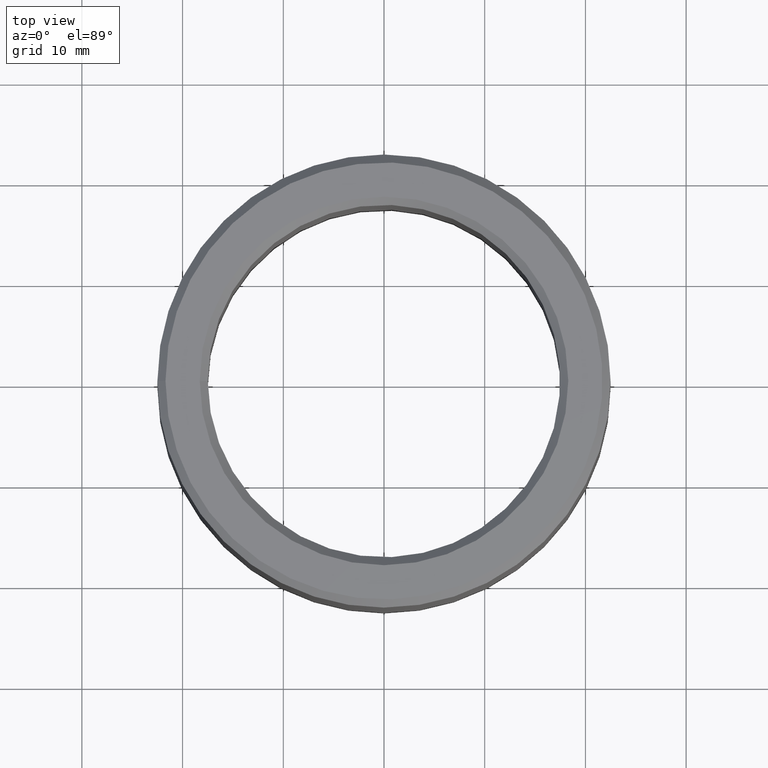
[diagram: clean part render]
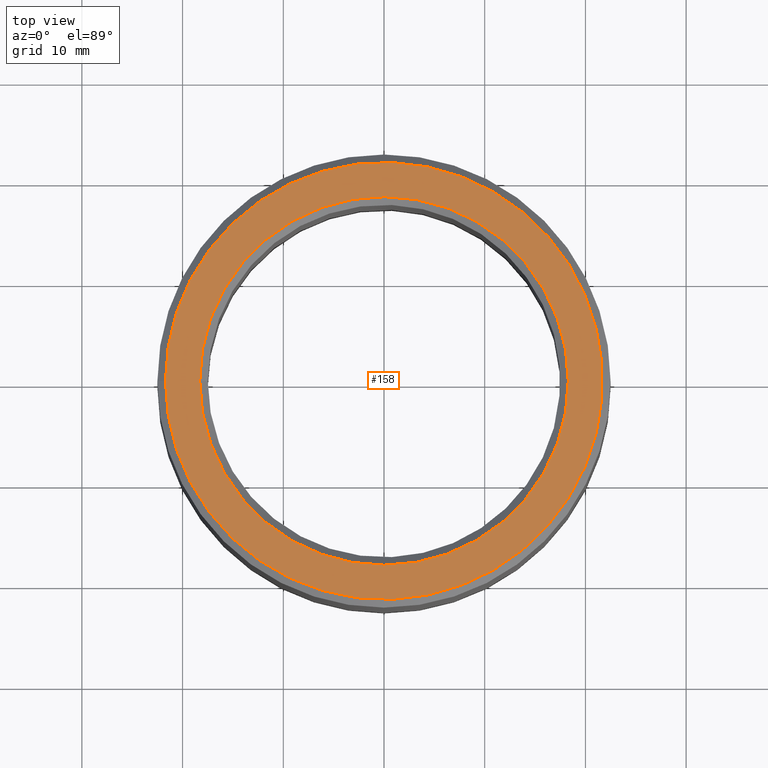
[diagram: same view with one face highlighted and labeled with its STEP entity id]
A machine part, top view. The second image highlights one B-rep face of the part: STEP entity #158.
In plain terms, the highlighted planar face has unit normal (0, -0, 1).
Its self-contained STEP definition (entity closure, byte-faithful):
#158=ADVANCED_FACE('',(#180,#181),#182,.T.);
#180=FACE_BOUND('',#3204,.T.);
#181=FACE_OUTER_BOUND('',#3205,.T.);
#182=PLANE('',#3206);
#3204=EDGE_LOOP('',(#6249));
#3205=EDGE_LOOP('',(#6250));
#3206=AXIS2_PLACEMENT_3D('',#6251,#6252,#6253);
#6249=ORIENTED_EDGE('',*,*,#6302,.T.);
#6250=ORIENTED_EDGE('',*,*,#6303,.F.);
#6251=CARTESIAN_POINT('',(0.0217,0.0,0.035));
#6252=DIRECTION('',(0.0,6.12323399573677E-017,1.0));
#6253=DIRECTION('',(0.0,-1.0,6.12323399573677E-017));
#6302=EDGE_CURVE('',#6332,#6332,#6333,.T.);
#6303=EDGE_CURVE('',#6334,#6334,#6335,.T.);
#6332=VERTEX_POINT('',#6594);
#6333=CIRCLE('',#6595,0.0183);
#6334=VERTEX_POINT('',#6596);
#6335=CIRCLE('',#6597,0.0217);
#6594=CARTESIAN_POINT('',(0.0,0.0183,0.035));
#6595=AXIS2_PLACEMENT_3D('',#6628,#6629,#6630);
#6596=CARTESIAN_POINT('',(0.0,0.0217,0.035));
#6597=AXIS2_PLACEMENT_3D('',#6631,#6632,#6633);
#6628=CARTESIAN_POINT('',(0.0,0.0,0.035));
#6629=DIRECTION('',(0.0,-6.12323399573677E-017,-1.0));
#6630=DIRECTION('',(0.0,1.0,-6.12323399573677E-017));
#6631=CARTESIAN_POINT('',(0.0,0.0,0.035));
#6632=DIRECTION('',(0.0,-6.12323399573677E-017,-1.0));
#6633=DIRECTION('',(0.0,1.0,-6.12323399573677E-017));